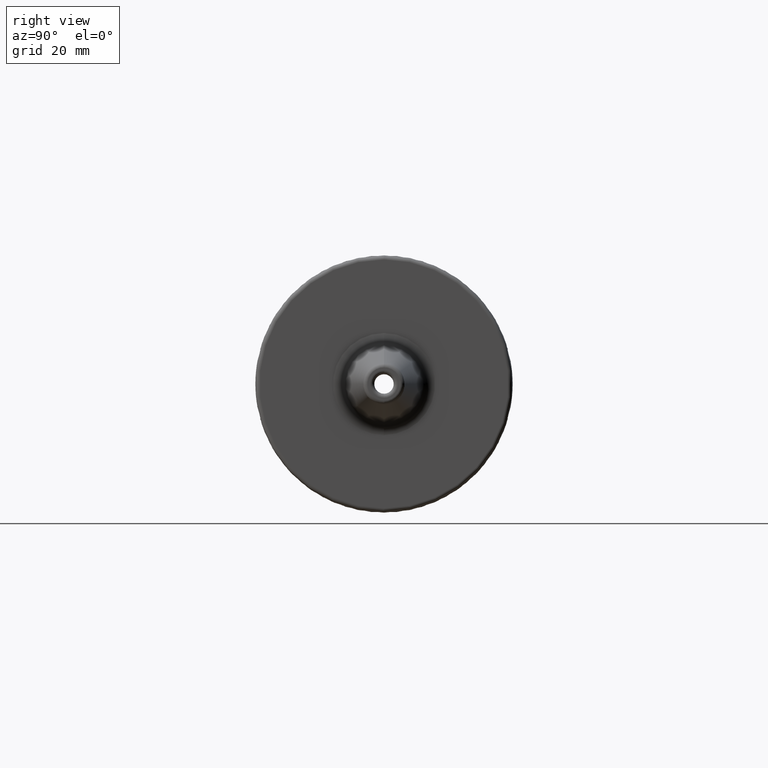
[diagram: clean part render]
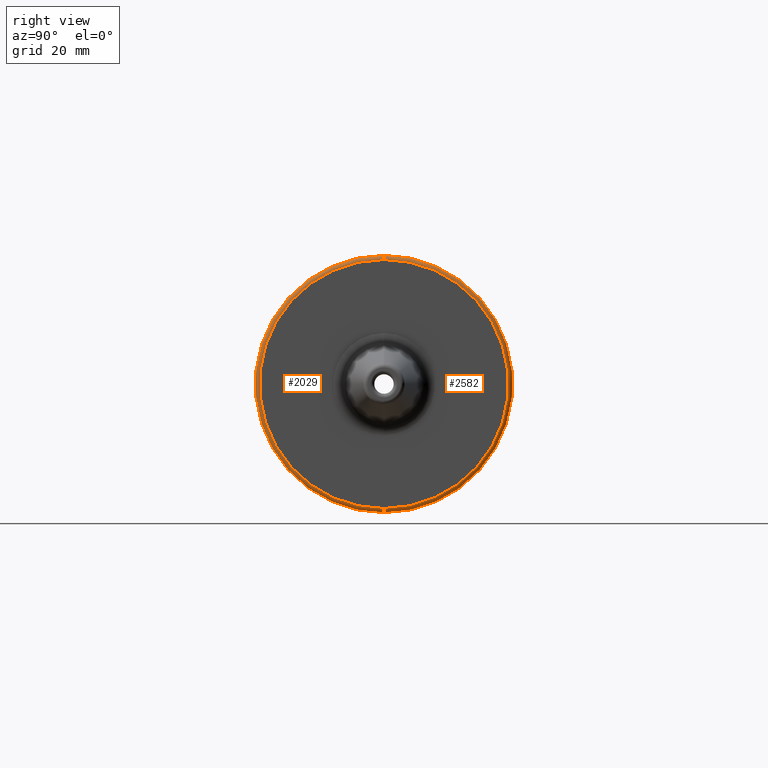
[diagram: same view with one multi-face feature highlighted, each face labeled with its STEP entity id]
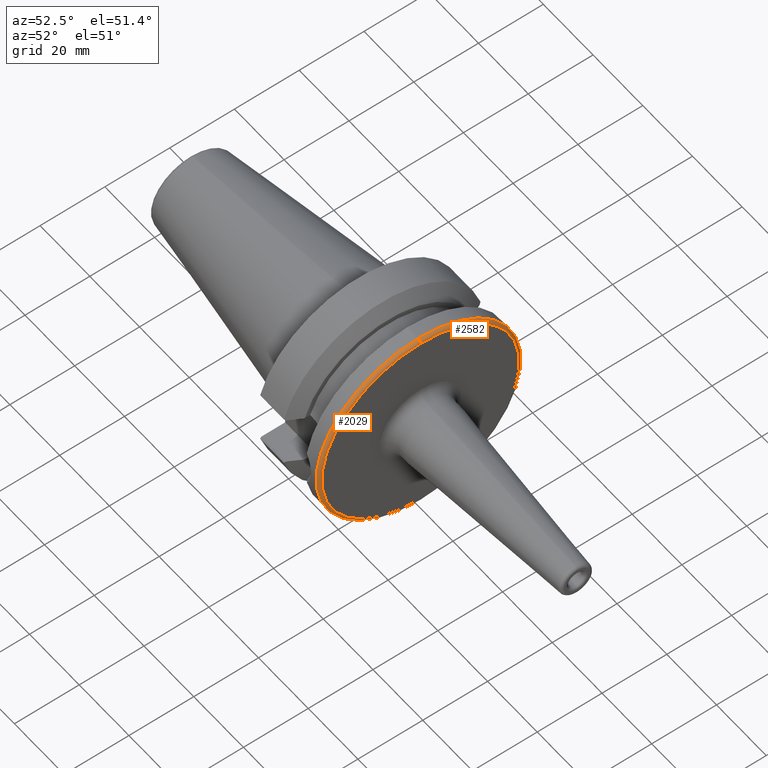
[diagram: same view with one multi-face feature highlighted, each face labeled with its STEP entity id]
A machine part, right view. The highlighted faces form ONE feature: a constant-radius fillet chain: 2 tangent blend faces with common blend radius 1 mm. The faces share edges in the B-rep.
A second angle (auxiliary view) of the same feature is appended — it is thin or edge-on in the first view.
Their STEP definitions:
[1] entity #2029 (Torus):
#497=CARTESIAN_POINT('',(2.7E1,0.E0,0.E0));
#498=DIRECTION('',(-1.E0,0.E0,0.E0));
#499=DIRECTION('',(0.E0,0.E0,-1.E0));
#500=AXIS2_PLACEMENT_3D('',#497,#498,#499);
#517=CARTESIAN_POINT('',(2.6E1,-3.677058657559E-13,-3.05E1));
#518=DIRECTION('',(0.E0,-1.E0,1.201816424157E-14));
#519=DIRECTION('',(0.E0,-1.201816424157E-14,-1.E0));
#520=AXIS2_PLACEMENT_3D('',#517,#518,#519);
#534=CARTESIAN_POINT('',(2.6E1,0.E0,0.E0));
#535=DIRECTION('',(-1.E0,0.E0,0.E0));
#536=DIRECTION('',(0.E0,0.E0,-1.E0));
#537=AXIS2_PLACEMENT_3D('',#534,#535,#536);
#1012=CARTESIAN_POINT('',(2.6E1,-4.005518139394E-12,3.05E1));
#1013=DIRECTION('',(0.E0,1.E0,1.313289754723E-13));
#1014=DIRECTION('',(0.E0,-1.313289754723E-13,1.E0));
#1015=AXIS2_PLACEMENT_3D('',#1012,#1013,#1014);
#1060=CARTESIAN_POINT('',(2.6E1,0.E0,-3.15E1));
#1061=CARTESIAN_POINT('',(2.6E1,0.E0,3.15E1));
#1062=VERTEX_POINT('',#1060);
#1063=VERTEX_POINT('',#1061);
#1064=CARTESIAN_POINT('',(2.7E1,0.E0,-3.05E1));
#1065=CARTESIAN_POINT('',(2.7E1,0.E0,3.05E1));
#1066=VERTEX_POINT('',#1064);
#1067=VERTEX_POINT('',#1065);
#2015=CARTESIAN_POINT('',(2.6E1,0.E0,0.E0));
#2016=DIRECTION('',(-1.E0,0.E0,0.E0));
#2017=DIRECTION('',(0.E0,9.684522776956E-1,-2.491990887348E-1));
#2018=AXIS2_PLACEMENT_3D('',#2015,#2016,#2017);
#2019=TOROIDAL_SURFACE('',#2018,3.05E1,1.E0);
#2021=ORIENTED_EDGE('',*,*,#2020,.T.);
#2023=ORIENTED_EDGE('',*,*,#2022,.T.);
#2024=ORIENTED_EDGE('',*,*,#2003,.F.);
#2026=ORIENTED_EDGE('',*,*,#2025,.F.);
#2027=EDGE_LOOP('',(#2021,#2023,#2024,#2026));
#2028=FACE_OUTER_BOUND('',#2027,.F.);
#2029=ADVANCED_FACE('',(#2028),#2019,.T.);
#501=CIRCLE('',#500,3.05E1);
#521=CIRCLE('',#520,1.E0);
#538=CIRCLE('',#537,3.15E1);
#1016=CIRCLE('',#1015,1.E0);
#2003=EDGE_CURVE('',#1066,#1067,#501,.T.);
#2020=EDGE_CURVE('',#1062,#1063,#538,.T.);
#2022=EDGE_CURVE('',#1063,#1067,#1016,.T.);
#2025=EDGE_CURVE('',#1062,#1066,#521,.T.);
[2] entity #2582 (Torus):
#502=CARTESIAN_POINT('',(2.7E1,0.E0,0.E0));
#503=DIRECTION('',(-1.E0,0.E0,0.E0));
#504=DIRECTION('',(0.E0,0.E0,1.E0));
#505=AXIS2_PLACEMENT_3D('',#502,#503,#504);
#517=CARTESIAN_POINT('',(2.6E1,-3.677058657559E-13,-3.05E1));
#518=DIRECTION('',(0.E0,-1.E0,1.201816424157E-14));
#519=DIRECTION('',(0.E0,-1.201816424157E-14,-1.E0));
#520=AXIS2_PLACEMENT_3D('',#517,#518,#519);
#771=CARTESIAN_POINT('',(2.6E1,0.E0,0.E0));
#772=DIRECTION('',(-1.E0,0.E0,0.E0));
#773=DIRECTION('',(0.E0,0.E0,1.E0));
#774=AXIS2_PLACEMENT_3D('',#771,#772,#773);
#1012=CARTESIAN_POINT('',(2.6E1,-4.005518139394E-12,3.05E1));
#1013=DIRECTION('',(0.E0,1.E0,1.313289754723E-13));
#1014=DIRECTION('',(0.E0,-1.313289754723E-13,1.E0));
#1015=AXIS2_PLACEMENT_3D('',#1012,#1013,#1014);
#1060=CARTESIAN_POINT('',(2.6E1,0.E0,-3.15E1));
#1061=CARTESIAN_POINT('',(2.6E1,0.E0,3.15E1));
#1062=VERTEX_POINT('',#1060);
#1063=VERTEX_POINT('',#1061);
#1064=CARTESIAN_POINT('',(2.7E1,0.E0,-3.05E1));
#1065=CARTESIAN_POINT('',(2.7E1,0.E0,3.05E1));
#1066=VERTEX_POINT('',#1064);
#1067=VERTEX_POINT('',#1065);
#2571=CARTESIAN_POINT('',(2.6E1,0.E0,0.E0));
#2572=DIRECTION('',(-1.E0,0.E0,0.E0));
#2573=DIRECTION('',(0.E0,-6.569083321303E-3,9.999784233394E-1));
#2574=AXIS2_PLACEMENT_3D('',#2571,#2572,#2573);
#2575=TOROIDAL_SURFACE('',#2574,3.05E1,1.E0);
#2576=ORIENTED_EDGE('',*,*,#2288,.T.);
#2577=ORIENTED_EDGE('',*,*,#2025,.T.);
#2578=ORIENTED_EDGE('',*,*,#2005,.F.);
#2579=ORIENTED_EDGE('',*,*,#2022,.F.);
#2580=EDGE_LOOP('',(#2576,#2577,#2578,#2579));
#2581=FACE_OUTER_BOUND('',#2580,.F.);
#2582=ADVANCED_FACE('',(#2581),#2575,.T.);
#506=CIRCLE('',#505,3.05E1);
#521=CIRCLE('',#520,1.E0);
#775=CIRCLE('',#774,3.15E1);
#1016=CIRCLE('',#1015,1.E0);
#2005=EDGE_CURVE('',#1067,#1066,#506,.T.);
#2022=EDGE_CURVE('',#1063,#1067,#1016,.T.);
#2025=EDGE_CURVE('',#1062,#1066,#521,.T.);
#2288=EDGE_CURVE('',#1063,#1062,#775,.T.);